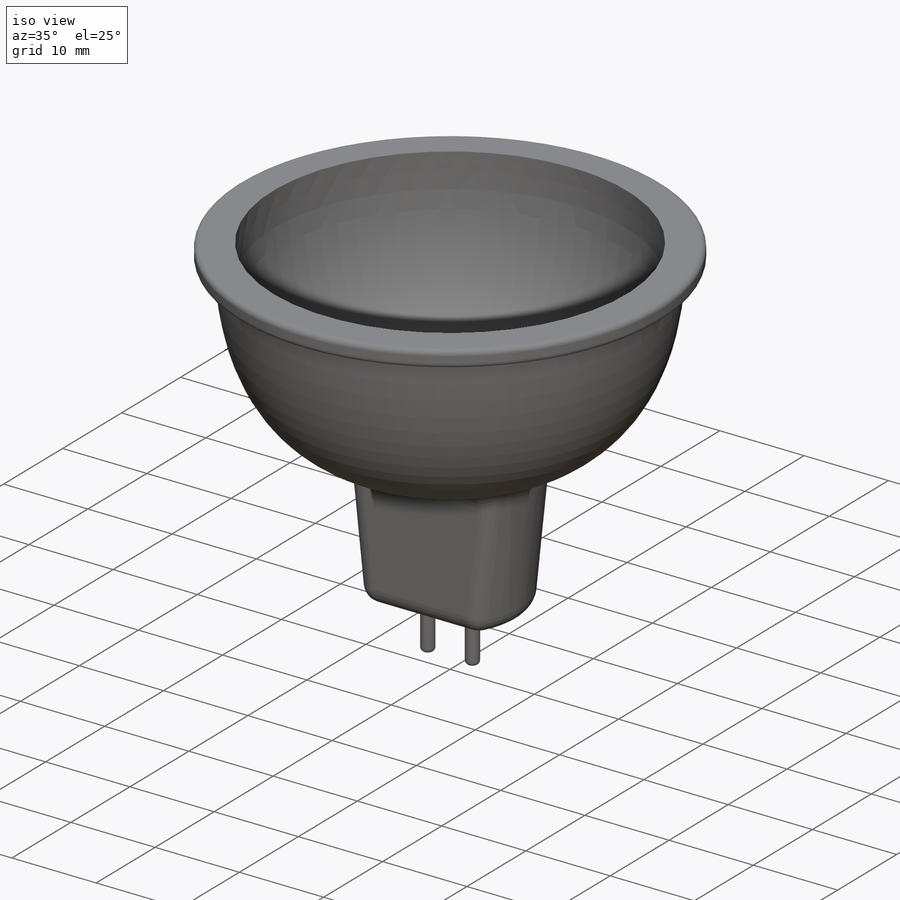
[diagram: iso view]
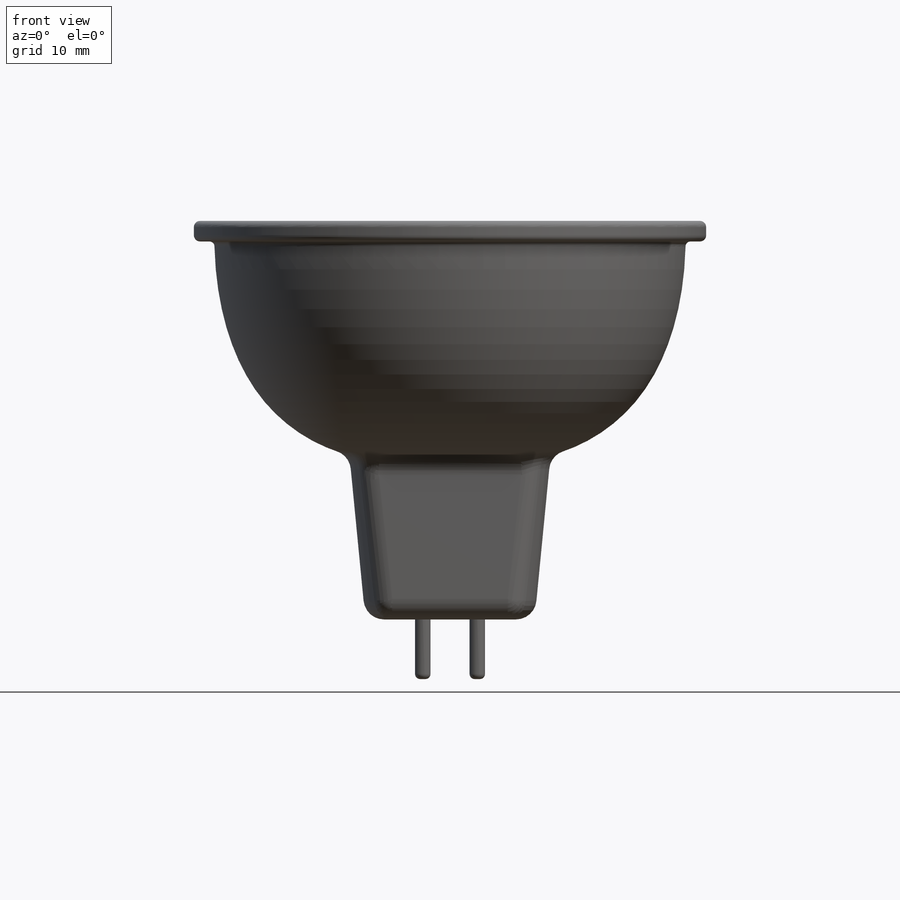
[diagram: front view]
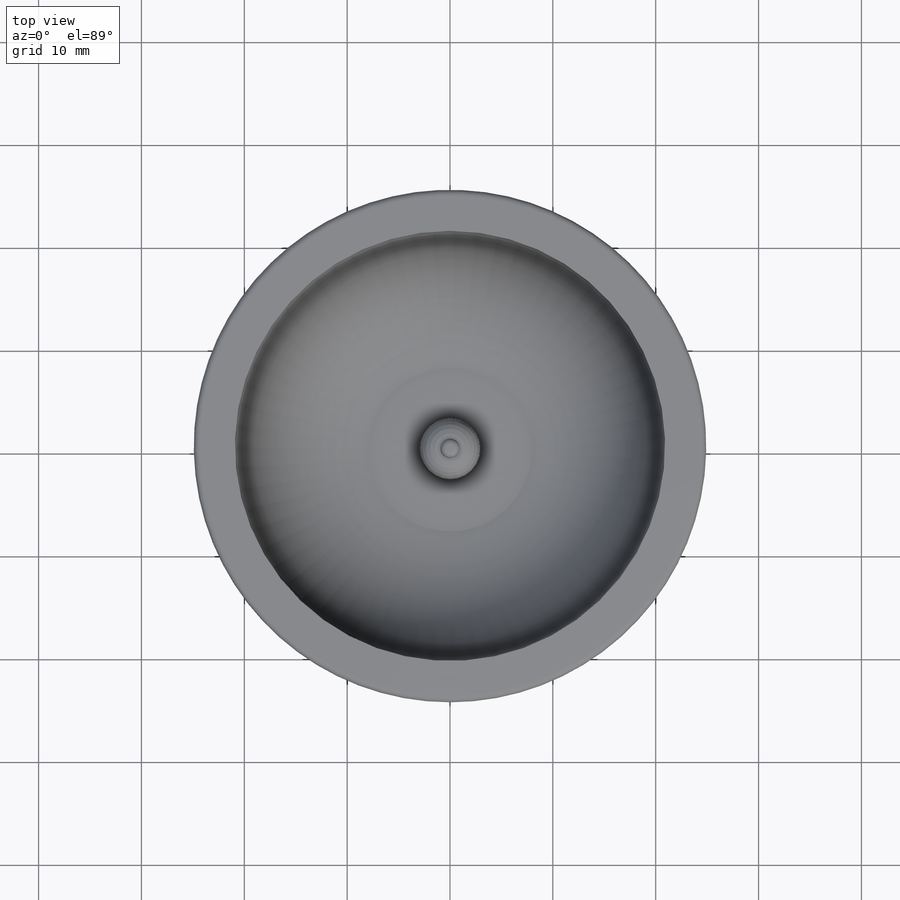
[diagram: top view]
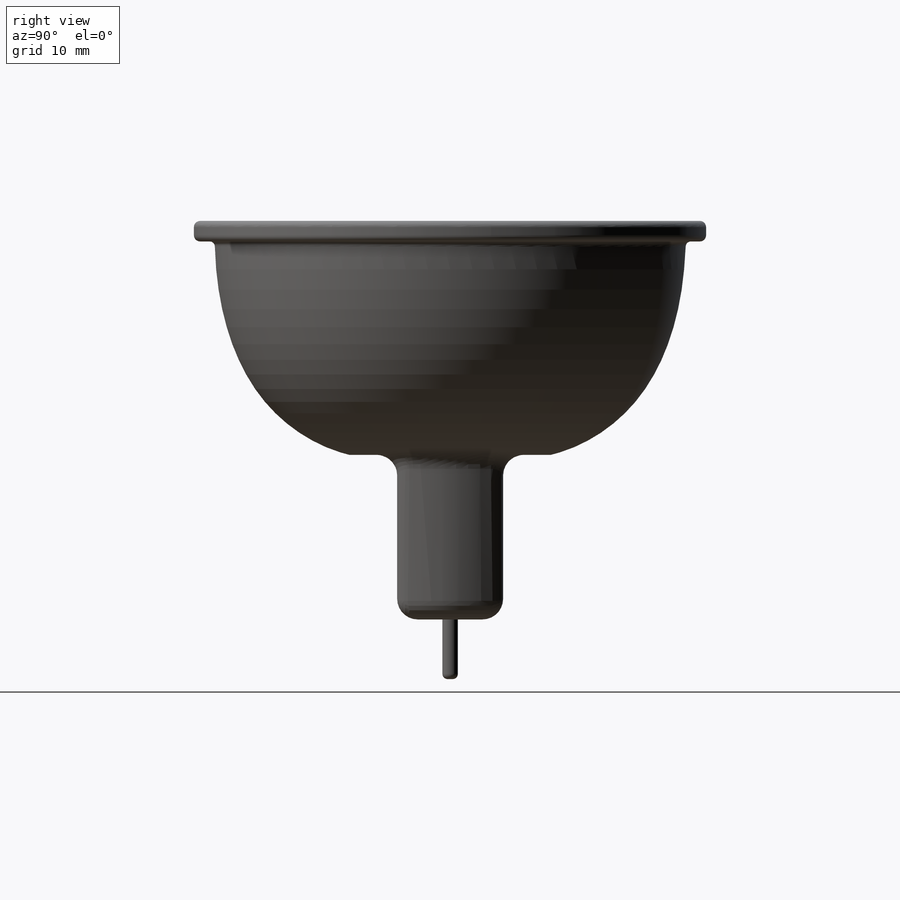
[diagram: right view]
SOLIDWORKS PART (.sldprt)
format: sldprt  version: not decoded by parser v0  size: 454,144 bytes
history: native  units: mm
features: fillet x8, sketch x6, extrude x3, mirror x2, material x1, revolve x1, cut_extrude x1 (+13 scaffold rows collapsed)
feature tree (35):
  scaffold x13  (default folders/planes/origin — collapsed)
  material  "Material <not specified>"
  sketch  "Sketch1"  dims[c1.D1=~4.097458mm c1.D2=~21.818966mm c2.D1=2.0mm c2.D2=25.0mm c2.D3=9.8mm c2.D4=8.25mm c2.D5=38.75mm c2.D6=16.0mm c2.D7=2.0mm c2.D8=2.0mm c2.D10=~17.61108mm c2.D9=2.0mm]
  revolve  "Revolve2"  Angle=360deg
  sketch  "Sketch2"  dims[D1=~17.030547mm D2=19.6mm]
  sketch  "Sketch4"  dims[c1.D1=~2.864305mm c1.D2=~12.943912mm c2.D1=6.0mm c2.D2=20.0mm c3.D1=~5.258632mm c3.D2=~18.697358mm c4.D1=5.15mm]
  cut_extrude  "Cut-Extrude2"  Depth=16mm
  mirror  "Mirror1"
  sketch  "Sketch5"  dims[D1=1.5mm D2=2.65mm]
  extrude  "Boss-Extrude2"  Depth=5.8mm
  mirror  "Mirror2"
  sketch  "Sketch6"  dims[D1=~5.863136mm]
  extrude  "Boss-Extrude3"  Depth=7mm
  fillet  "Fillet4"  Radius=2mm
  fillet  "Fillet6"  Radius=0.5mm
  fillet  "Fillet8"  Radius=2mm
  fillet  "Fillet9"  Radius=2mm
  fillet  "Fillet11"  Radius=2mm
  sketch  "Sketch7"  dims[D1=~1.863136mm]
  extrude  "Boss-Extrude4"  Depth=2.5mm
  fillet  "Fillet12"  Radius=0.6mm
  fillet  "Fillet13"  Radius=0.6mm
  fillet  "Fillet14"  Radius=0.5mm
decode coverage: 19 of 21 modeling features carry decoded parameters
note: ~ marks probable driven/reference dimensions
note: suppression state not decoded; provenance and decode notes live in map.json
